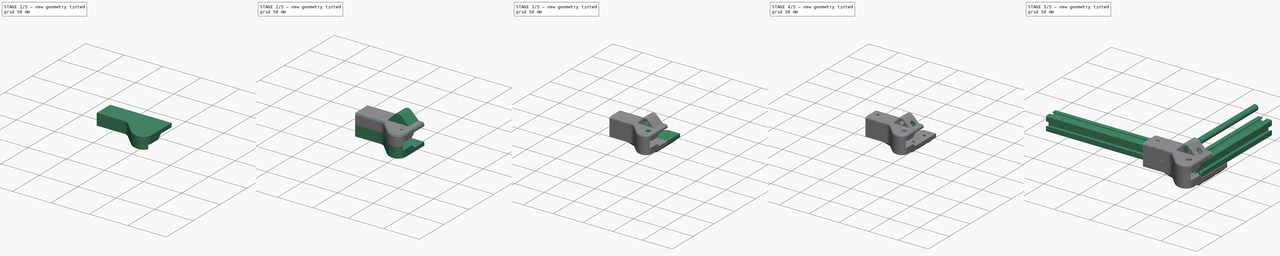
[diagram: build sequence overview — one tinted view per stage of 5, left to right]
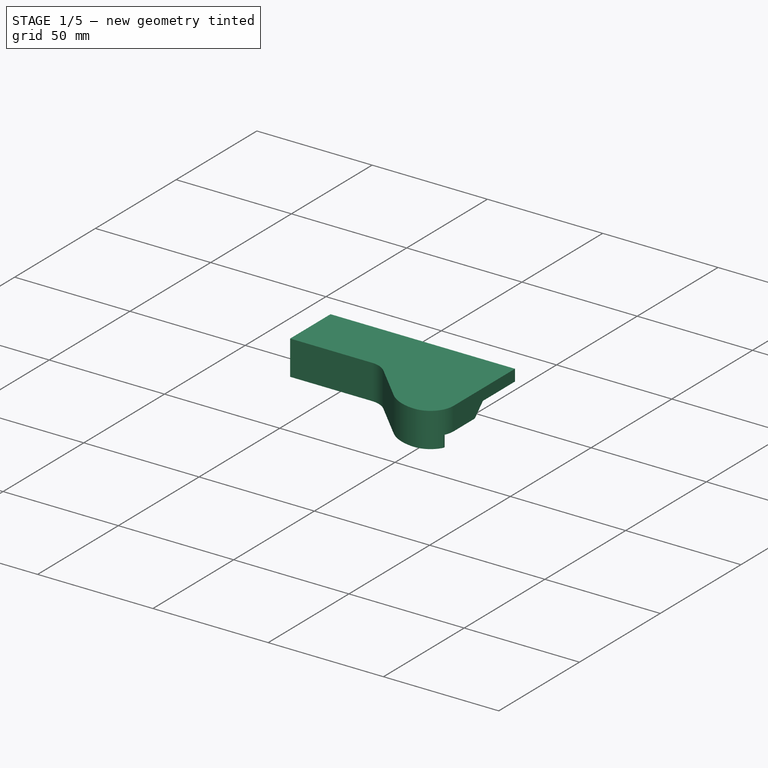
[diagram: stage 1 of 5 — iso view after this stage's code; geometry added in this stage tinted green]
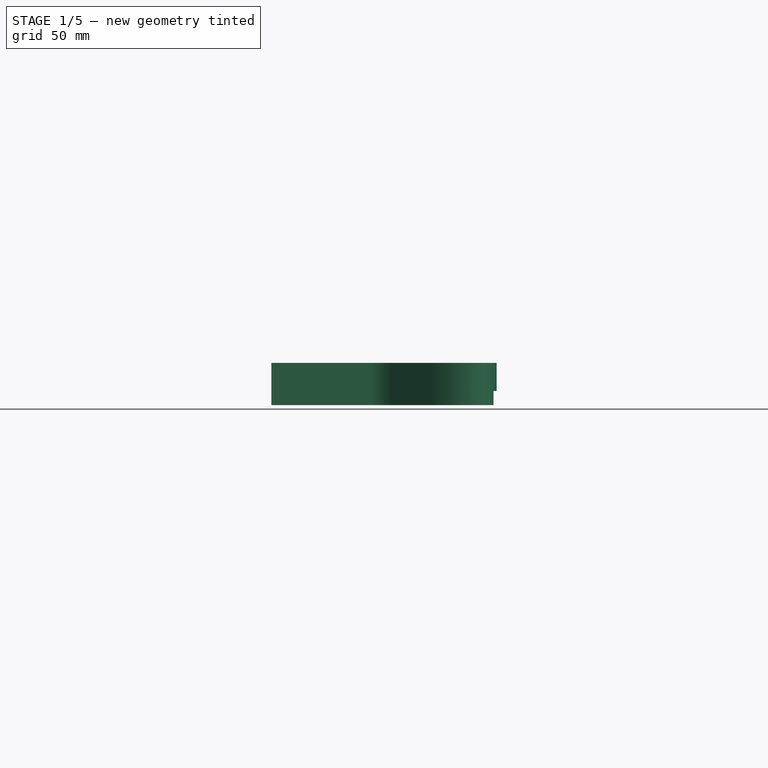
[diagram: stage 1 of 5 — front view after this stage's code; geometry added in this stage tinted green]
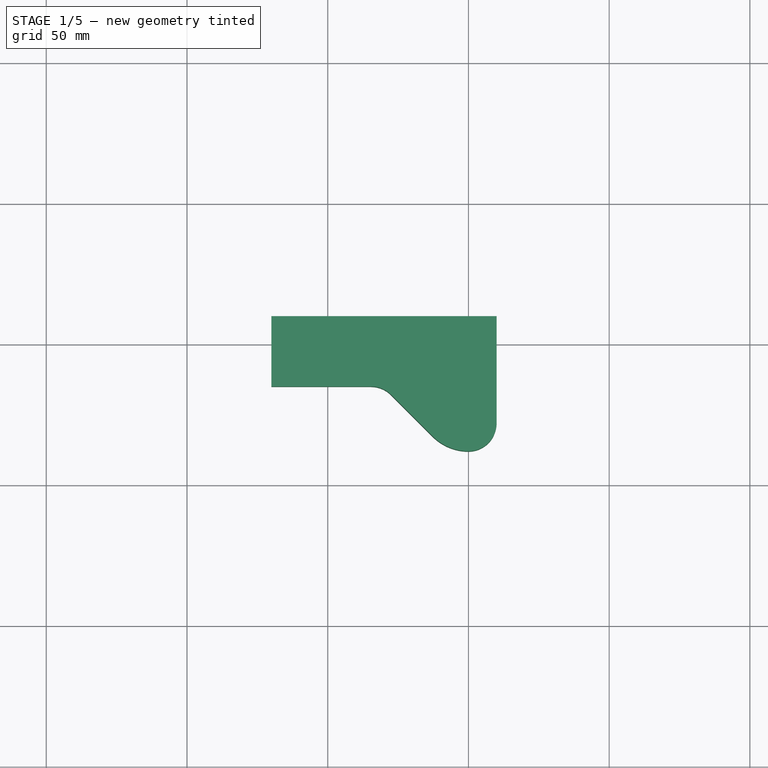
[diagram: stage 1 of 5 — top view after this stage's code; geometry added in this stage tinted green]
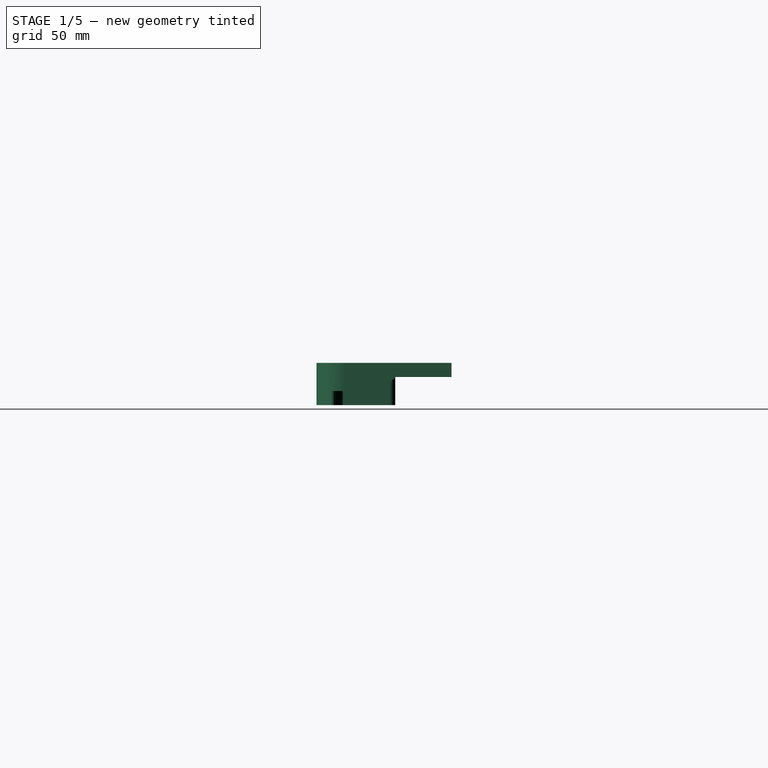
[diagram: stage 1 of 5 — right view after this stage's code; geometry added in this stage tinted green]
FCSTD DOCUMENT  (FreeCAD 0.16R4945 (Git))
Label: IdlerHold
License: All rights reserved
LicenseURL: http://en.wikipedia.org/wiki/All_rights_reserved
objects: Sketcher::SketchObject×18, PartDesign::Pocket×13, PartDesign::Pad×4, Part::Fillet×4, Part::Chamfer×4, Part::Mirroring×3, Part::Feature×2, PartDesign::LinearPattern×2, Part::Compound×1, Part::MultiFuse×1, App::DocumentObjectGroup×1
note: 69 computed .brp shape members not serialized (recipe doc carries the construction recipe); baked Part::Feature solids carry a one-line shape summary decoded from their .brp

FEATURE [Sketcher::SketchObject] Sketch001  label="Base"
  sketch-geometry (6):
    g0: LineSegment StartX=-70 StartY=10 StartZ=0 EndX=10 EndY=10 EndZ=0
    g1: LineSegment StartX=10 StartY=10 StartZ=0 EndX=10 EndY=-34.9666 EndZ=0
    g2: LineSegment StartX=-30.4558 StartY=-15 StartZ=0 EndX=-70 EndY=-15 EndZ=0
    g3: LineSegment StartX=-70 StartY=-15 StartZ=0 EndX=-70 EndY=10 EndZ=0
    g4: ArcOfCircle CenterX=0 CenterY=-20 CenterZ=0 NormalX=0 NormalY=0 NormalZ=1 Radius=18 StartAngle=3.92699 EndAngle=5.30142
    g5: LineSegment StartX=-30.4558 StartY=-15 StartZ=0 EndX=-12.728 EndY=-32.7279 EndZ=0
  constraints (19):
    c: Coincident(g0,g1)
    c: Coincident(g2,g3)
    c: Coincident(g3,g0)
    c: Horizontal(g0)
    c: Horizontal(g2)
    c: Vertical(g1)
    c: Vertical(g3)
    c: Coincident(g5,g2)
    c: Coincident(g4,g5)
    c: Tangent(g5,g4)
    c: Coincident(g4,g1)
    c: DistanceX(g1) = 10
    c: Angle(g5) = -0.785398
    c: DistanceY(g3) = 25
    c: DistanceY(g0) = 10
    c: PointOnObject(g4,g-2)
    c: DistanceY(g4) = -20
    c: DistanceX(g2) = -70
    c: Radius(g4) = 18
FEATURE [PartDesign::Pad] Pad  label="Base001"
  Length = 15
  Length2 = 100
  Sketch = -> Sketch001
  Type = 0
FEATURE [Part::Fillet] Fillet
  Base = -> Pad
  Edges = 2 edges r=10: [Edge1,Edge11]
FEATURE [Sketcher::SketchObject] Sketch002  label="InnerCavity"
  Placement = pos=(0,0,0) rot=(1,0,0;3.14159rad)
  Support = -> Fillet [Face2]
  sketch-geometry (6):
    g0: LineSegment StartX=-106.758 StartY=10 StartZ=0 EndX=-10 EndY=10 EndZ=0
    g1: LineSegment StartX=11.8067 StartY=24.1451 StartZ=0 EndX=11.8067 EndY=-14.3815 EndZ=0
    g2: LineSegment StartX=11.8067 StartY=-14.3815 StartZ=0 EndX=-106.758 EndY=-14.3815 EndZ=0
    g3: LineSegment StartX=-106.758 StartY=-14.3815 StartZ=0 EndX=-106.758 EndY=10 EndZ=0
    g4: LineSegment StartX=-10 StartY=10 StartZ=0 EndX=-10 EndY=28.6332 EndZ=0
    g5: ArcOfCircle CenterX=0 CenterY=22 CenterZ=0 NormalX=0 NormalY=0 NormalZ=1 Radius=12 StartAngle=0.17972 EndAngle=2.55591
  constraints (16):
    c: Coincident(g1,g2)
    c: Coincident(g2,g3)
    c: Coincident(g3,g0)
    c: Horizontal(g0)
    c: Horizontal(g2)
    c: Vertical(g1)
    c: Vertical(g3)
    c: Coincident(g4,g0)
    c: Coincident(g4,g5)
    c: Vertical(g4)
    c: PointOnObject(g5,g-2)
    c: DistanceY(g0) = 10
    c: DistanceX(g0) = -10
    c: Coincident(g1,g5)
    c: DistanceY(g5) = 22
    c: Radius(g5) = 12
FEATURE [PartDesign::Pocket] Pocket  label="InnerCavity001"
  Length = 5
  Sketch = -> Sketch002
  Type = 0
FEATURE [Sketcher::SketchObject] Sketch006  label="ProfileSlots"
  Placement = pos=(0,0,0) rot=(1,0,0;3.14159rad)
  Support = -> Pocket [Face2]
  sketch-geometry (4):
    g0: LineSegment StartX=-104.13 StartY=10 StartZ=0 EndX=16.5689 EndY=10 EndZ=0
    g1: LineSegment StartX=16.5689 StartY=10 StartZ=0 EndX=16.5689 EndY=-12.6117 EndZ=0
    g2: LineSegment StartX=16.5689 StartY=-12.6117 StartZ=0 EndX=-104.13 EndY=-12.6117 EndZ=0
    g3: LineSegment StartX=-104.13 StartY=-12.6117 StartZ=0 EndX=-104.13 EndY=10 EndZ=0
  constraints (9):
    c: Coincident(g0,g1)
    c: Coincident(g1,g2)
    c: Coincident(g2,g3)
    c: Coincident(g3,g0)
    c: Horizontal(g0)
    c: Horizontal(g2)
    c: Vertical(g1)
    c: Vertical(g3)
    c: DistanceY(g0) = 10
FEATURE [PartDesign::Pocket] Pocket001  label="ProfileSlots001"
  Length = 10
  Sketch = -> Sketch006
  Type = 0
FEATURE [Part::Chamfer] Chamfer  label="PrintableChamfer"
  Base = -> Pocket001
  Edges = 1 edges r=4.9: [Edge35]
FEATURE [Part::Fillet] Fillet003  label="AntiCreaseFillet"
  Base = -> Chamfer
  Edges = 3 edges: [Edge4 r=2,Edge6 r=2,Edge14 r=1]
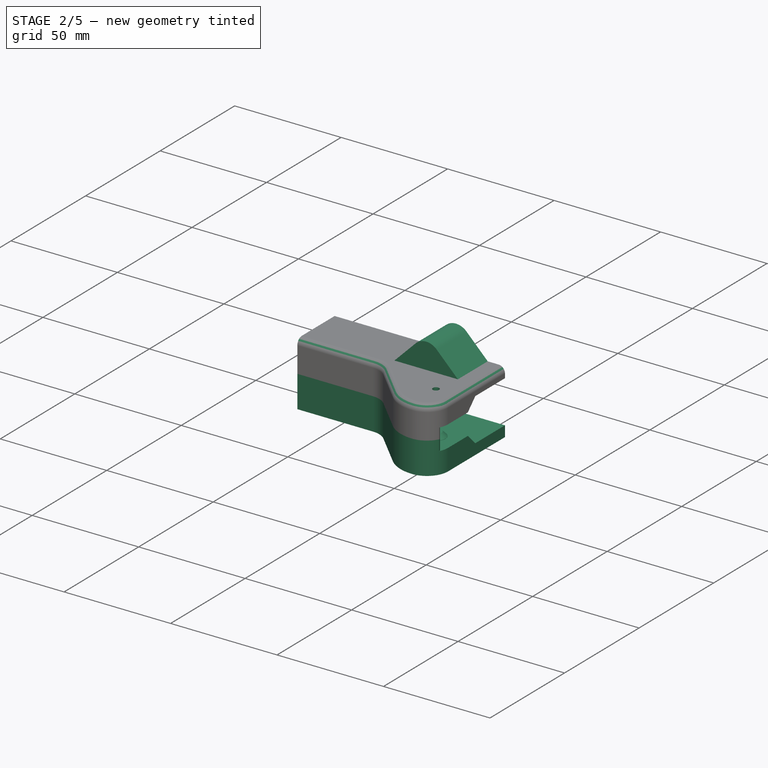
[diagram: stage 2 of 5 — iso view after this stage's code; geometry added in this stage tinted green]
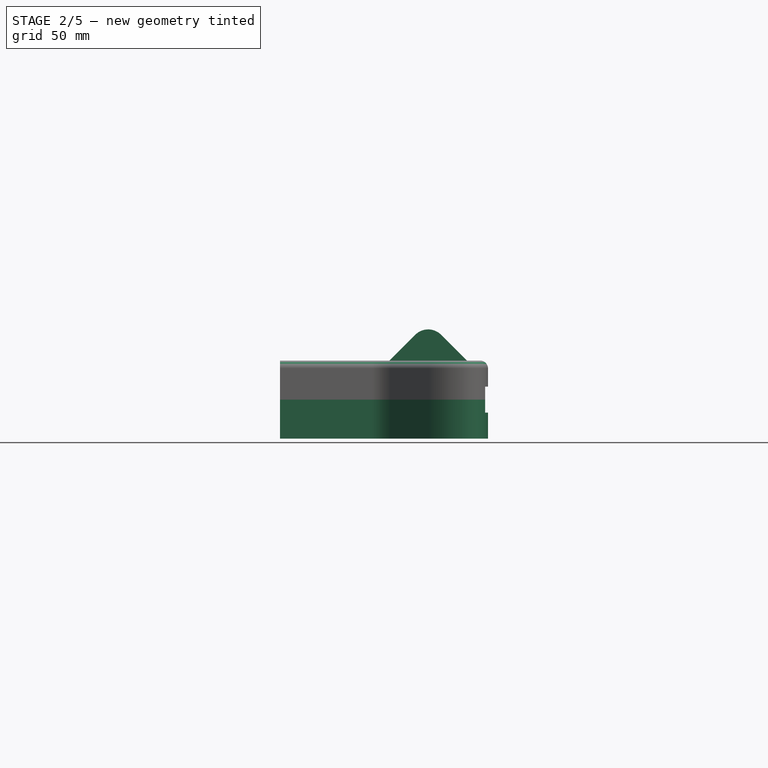
[diagram: stage 2 of 5 — front view after this stage's code; geometry added in this stage tinted green]
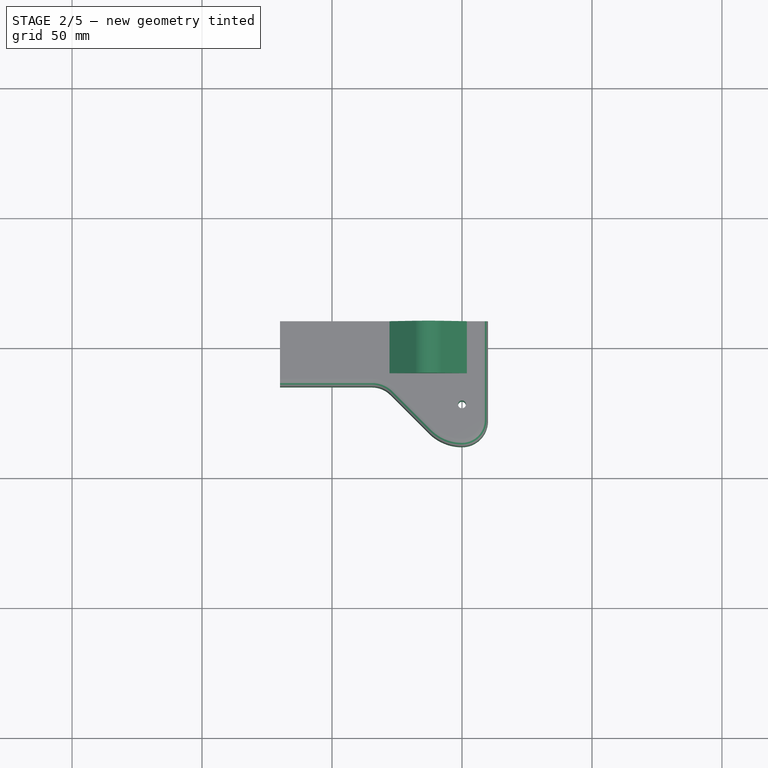
[diagram: stage 2 of 5 — top view after this stage's code; geometry added in this stage tinted green]
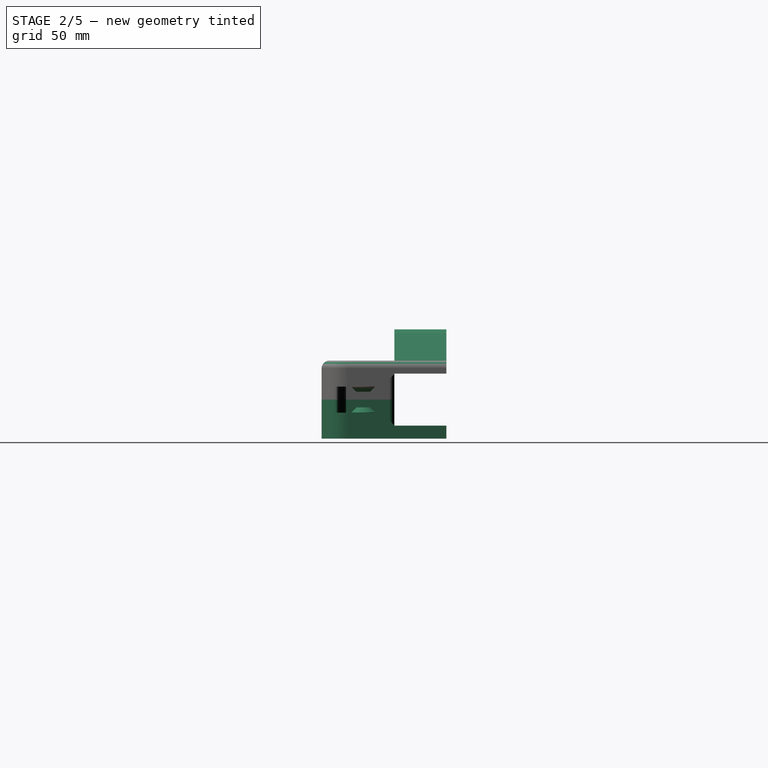
[diagram: stage 2 of 5 — right view after this stage's code; geometry added in this stage tinted green]
FEATURE [Sketcher::SketchObject] Sketch005  label="IdlerPad"
  Placement = pos=(0,0,5) rot=(1,0,0;3.14159rad)
  Support = -> Fillet003 [Face4]
  sketch-geometry (1):
    g0: Circle CenterX=0 CenterY=22 CenterZ=0 NormalX=0 NormalY=0 NormalZ=1 Radius=4.5
  constraints (3):
    c: PointOnObject(g0,g-2)
    c: Radius(g0) = 4.5
    c: DistanceY(g0) = 22
FEATURE [PartDesign::Pad] Pad001  label="IdlerPad001"
  Length = 2
  Length2 = 100
  Sketch = -> Sketch005
  Type = 0
FEATURE [Part::Chamfer] Chamfer001  label="PrintableChamfer001"
  Base = -> Pad001
  Edges = 1 edges r=1.9: [Edge1]
FEATURE [Sketcher::SketchObject] Sketch007  label="IdlerBolt"
  Placement = pos=(0,0,3) rot=(1,0,0;3.14159rad)
  Support = -> Chamfer001 [Face1]
  sketch-geometry (1):
    g0: Circle CenterX=0 CenterY=22 CenterZ=0 NormalX=0 NormalY=0 NormalZ=1 Radius=1.5
  constraints (3):
    c: PointOnObject(g0,g-2)
    c: DistanceY(g0) = 22
    c: Radius(g0) = 1.5
FEATURE [PartDesign::Pocket] Pocket002  label="IdlerBolt001"
  Length = 5
  Sketch = -> Sketch007
  Type = 1
FEATURE [Part::Mirroring] Part__Mirroring  label="IdlerBolt001 (Mirror #3)"
  Base = (0,0,0)
  Normal = (0,0,1)
  Source = -> Pocket002
FEATURE [Part::MultiFuse] Fusion  label="Mirroring"
  Shapes = -> [Part__Mirroring,Pocket002]
FEATURE [Part::Fillet] Fillet005  label="FrontFillet"
  Base = -> Fusion
  Edges = 6 edges r=3: [Edge59,Edge61,Edge73,Edge75,Edge78,Edge92]
FEATURE [Sketcher::SketchObject] Sketch003  label="RodHold"
  Placement = pos=(0,10,0) rot=(0,0.707107,0.707107;3.14159rad)
  Support = -> Fillet005 [Face13]
  sketch-geometry (6):
    g0: ArcOfCircle CenterX=13 CenterY=20 CenterZ=0 NormalX=0 NormalY=0 NormalZ=1 Radius=7 StartAngle=0.785398 EndAngle=2.35619
    g1: LineSegment StartX=17.9497 StartY=24.9497 StartZ=0 EndX=29.2823 EndY=13.6172 EndZ=0
    g2: LineSegment StartX=8.05025 StartY=24.9497 StartZ=0 EndX=-3.28226 EndY=13.6172 EndZ=0
    g3: LineSegment StartX=-3.28226 StartY=13.6172 StartZ=0 EndX=-3.28226 EndY=10.9876 EndZ=0
    g4: LineSegment StartX=-3.28226 StartY=10.9876 StartZ=0 EndX=29.2823 EndY=10.9876 EndZ=0
    g5: LineSegment StartX=29.2823 StartY=10.9876 StartZ=0 EndX=29.2823 EndY=13.6172 EndZ=0
  constraints (17):
    c: DistanceY(g0) = 20
    c: DistanceX(g0) = 13
    c: Radius(g0) = 7
    c: Coincident(g1,g0)
    c: Coincident(g2,g0)
    c: Tangent(g0,g2)
    c: Tangent(g0,g1)
    c: Coincident(g3,g4)
    c: Coincident(g4,g5)
    c: Vertical(g5)
    c: Vertical(g3)
    c: Horizontal(g4)
    c: Coincident(g3,g2)
    c: Coincident(g5,g1)
    c: Perpendicular(g1,g2)
    c: Angle(g1) = -0.785398
    c: Equal(g3,g5)
FEATURE [PartDesign::Pad] Pad002  label="RodHold001"
  Length = 20
  Length2 = 100
  Reversed = true
  Sketch = -> Sketch003
  Type = 0
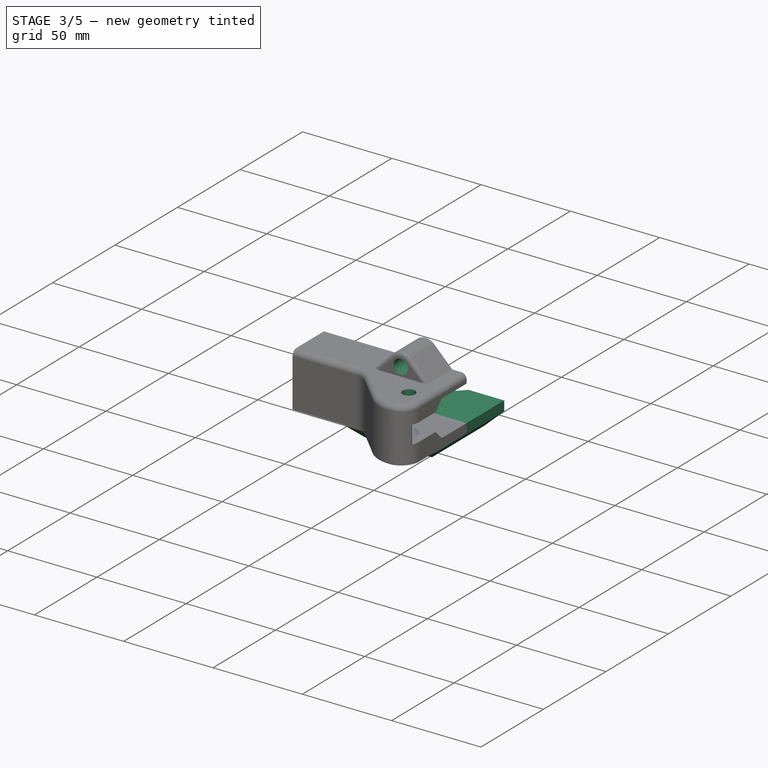
[diagram: stage 3 of 5 — iso view after this stage's code; geometry added in this stage tinted green]
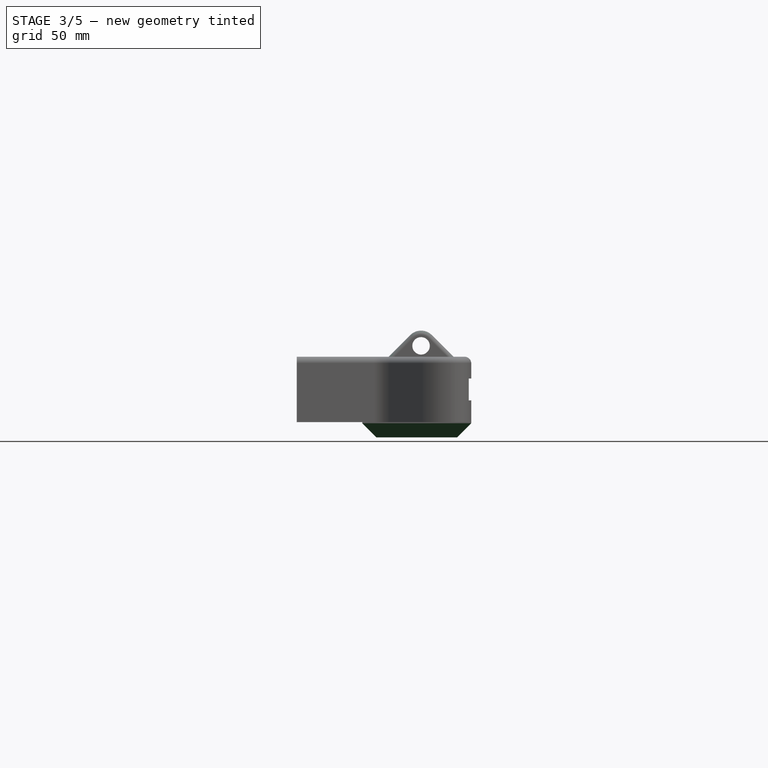
[diagram: stage 3 of 5 — front view after this stage's code; geometry added in this stage tinted green]
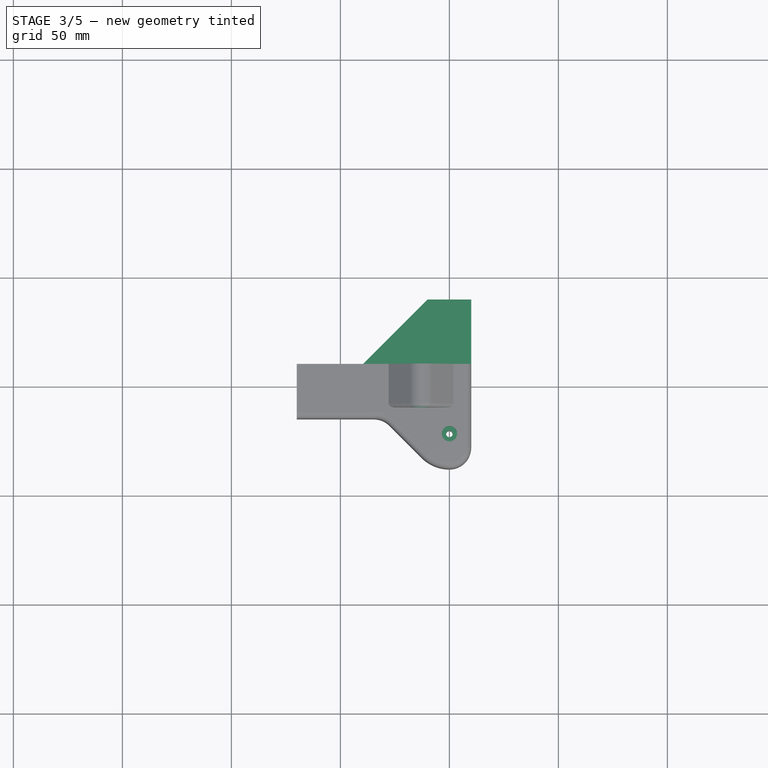
[diagram: stage 3 of 5 — top view after this stage's code; geometry added in this stage tinted green]
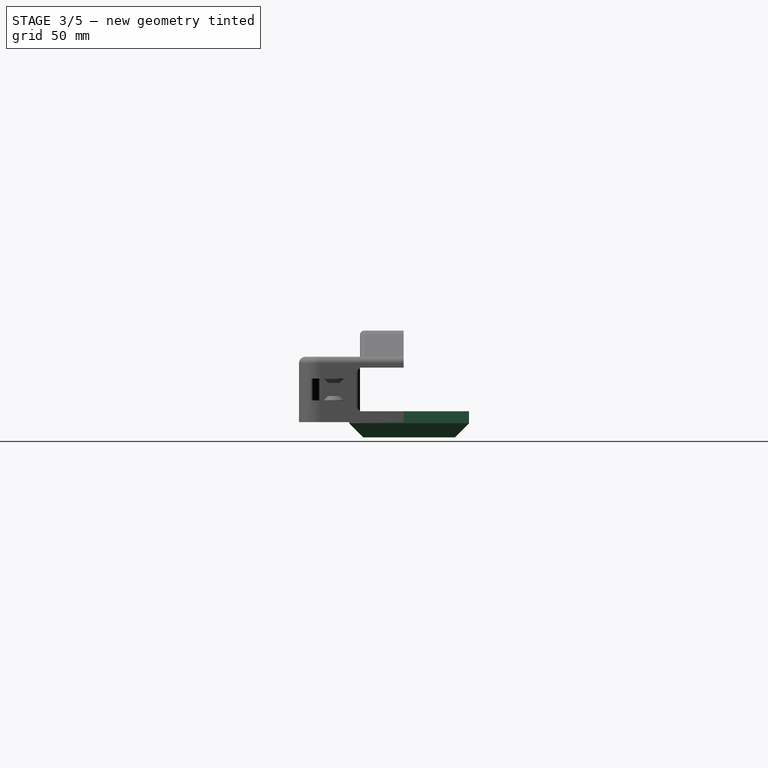
[diagram: stage 3 of 5 — right view after this stage's code; geometry added in this stage tinted green]
FEATURE [Part::Fillet] Fillet004
  Base = -> Pad002
  Edges = 3 edges r=2: [Edge4,Edge7,Edge10]
FEATURE [Sketcher::SketchObject] Sketch004  label="SmRod"
  Placement = pos=(0,10,0) rot=(0,0.707107,0.707107;3.14159rad)
  Support = -> Fillet004 [Face4]
  sketch-geometry (1):
    g0: Circle CenterX=13 CenterY=20 CenterZ=0 NormalX=0 NormalY=0 NormalZ=1 Radius=4
  constraints (3):
    c: DistanceX(g0) = 13
    c: DistanceY(g0) = 20
    c: Radius(g0) = 4
FEATURE [PartDesign::Pocket] Pocket003  label="SmRod001"
  Length = 5
  Sketch = -> Sketch004
  Type = 1
FEATURE [Sketcher::SketchObject] Sketch008  label="IdlerBoltHead"
  Placement = pos=(0,0,15) rot=(0,0,1;0rad)
  Support = -> Pocket003 [Face6]
  sketch-geometry (1):
    g0: Circle CenterX=0 CenterY=-22 CenterZ=0 NormalX=0 NormalY=0 NormalZ=1 Radius=3.5
  constraints (3):
    c: PointOnObject(g0,g-2)
    c: DistanceY(g0) = -22
    c: Radius(g0) = 3.5
FEATURE [PartDesign::Pocket] Pocket004  label="IdlerBoltHead001"
  Length = 5
  Sketch = -> Sketch008
  Type = 0
FEATURE [Sketcher::SketchObject] Sketch009  label="Foot"
  Placement = pos=(0,0,-10) rot=(0,0,1;0rad)
  Support = -> Pocket004 [Face39]
  sketch-geometry (5):
    g0: LineSegment StartX=-10 StartY=40 StartZ=0 EndX=10 EndY=40 EndZ=0
    g1: LineSegment StartX=10 StartY=40 StartZ=0 EndX=10 EndY=-15 EndZ=0
    g2: LineSegment StartX=10 StartY=-15 StartZ=0 EndX=-40 EndY=-15 EndZ=0
    g3: LineSegment StartX=-40 StartY=-15 StartZ=0 EndX=-40 EndY=10 EndZ=0
    g4: LineSegment StartX=-40 StartY=10 StartZ=0 EndX=-10 EndY=40 EndZ=0
  constraints (15):
    c: Coincident(g0,g1)
    c: Coincident(g1,g2)
    c: Coincident(g2,g3)
    c: Coincident(g3,g4)
    c: Coincident(g0,g4)
    c: Horizontal(g0)
    c: Vertical(g1)
    c: Vertical(g3)
    c: Horizontal(g2)
    c: DistanceX(g1) = 10
    c: Angle(g4) = 0.785398
    c: DistanceX(g0) = 20
    c: DistanceY(g1) = -15
    c: DistanceY(g3) = 25
    c: DistanceY(g0) = 40
FEATURE [PartDesign::Pad] Pad003  label="Foot001"
  Length = 12
  Length2 = 100
  Reversed = true
  Sketch = -> Sketch009
  Type = 0
FEATURE [Part::Chamfer] Chamfer002
  Base = -> Pad003
  Edges = 5 edges r=6.49: [Edge145,Edge160,Edge171,Edge173,Edge174]
FEATURE [Sketcher::SketchObject] Sketch010  label="IdlerNut"
  Placement = pos=(0,0,-15) rot=(1,0,0;3.14159rad)
  Support = -> Chamfer002 [Face4]
  sketch-geometry (7):
    g0: LineSegment StartX=1.55 StartY=19.3153 StartZ=0 EndX=3.1 EndY=22 EndZ=0
    g1: LineSegment StartX=3.1 StartY=22 StartZ=0 EndX=1.55 EndY=24.6847 EndZ=0
    g2: LineSegment StartX=1.55 StartY=24.6847 StartZ=0 EndX=-1.55 EndY=24.6847 EndZ=0
    g3: LineSegment StartX=-1.55 StartY=24.6847 StartZ=0 EndX=-3.1 EndY=22 EndZ=0
    g4: LineSegment StartX=-3.1 StartY=22 StartZ=0 EndX=-1.55 EndY=19.3153 EndZ=0
    g5: LineSegment StartX=-1.55 StartY=19.3153 StartZ=0 EndX=1.55 EndY=19.3153 EndZ=0
    g6: Circle [constr] CenterX=0 CenterY=22 CenterZ=0 NormalX=0 NormalY=0 NormalZ=1 Radius=3.1
  constraints (17):
    c: Coincident(g0,g1)
    c: Coincident(g1,g2)
    c: Coincident(g2,g3)
    c: Coincident(g3,g4)
    c: Coincident(g4,g5)
    c: Coincident(g5,g0)
    c: Equal(g0, g1-g5) x5
    c: PointOnObject(g0,g6)
    c: PointOnObject(g1,g6)
    c: PointOnObject(g2,g6)
    c: PointOnObject(g3,g6)
    c: PointOnObject(g4,g6)
    c: PointOnObject(g5,g6)
    c: PointOnObject(g6,g-2)
    c: DistanceY(g6) = 22
    c: Radius(g6) = 3.1
    c: Horizontal(g2)
FEATURE [PartDesign::Pocket] Pocket005  label="IdlerNut001"
  Length = 4
  Sketch = -> Sketch010
  Type = 0
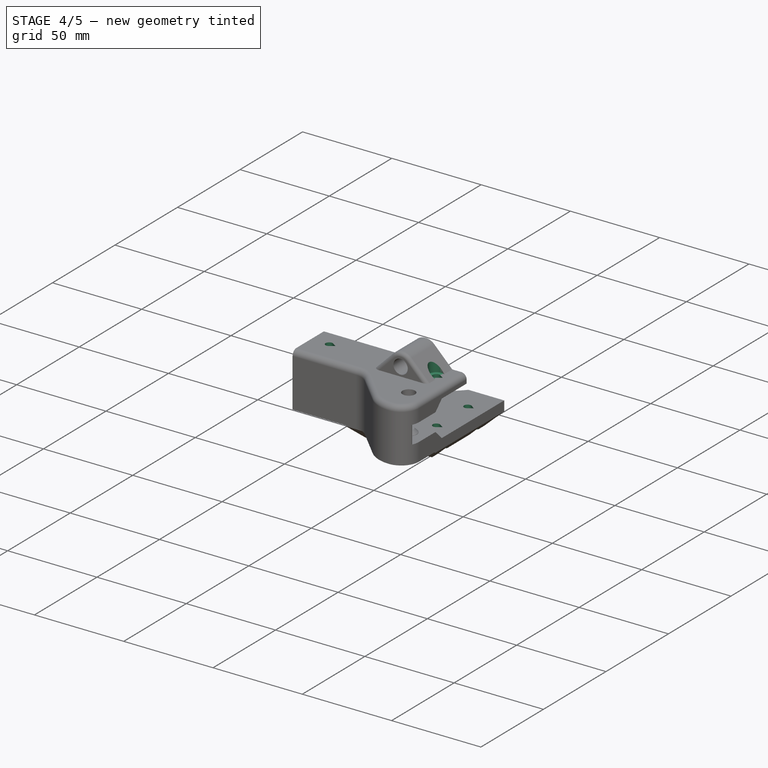
[diagram: stage 4 of 5 — iso view after this stage's code; geometry added in this stage tinted green]
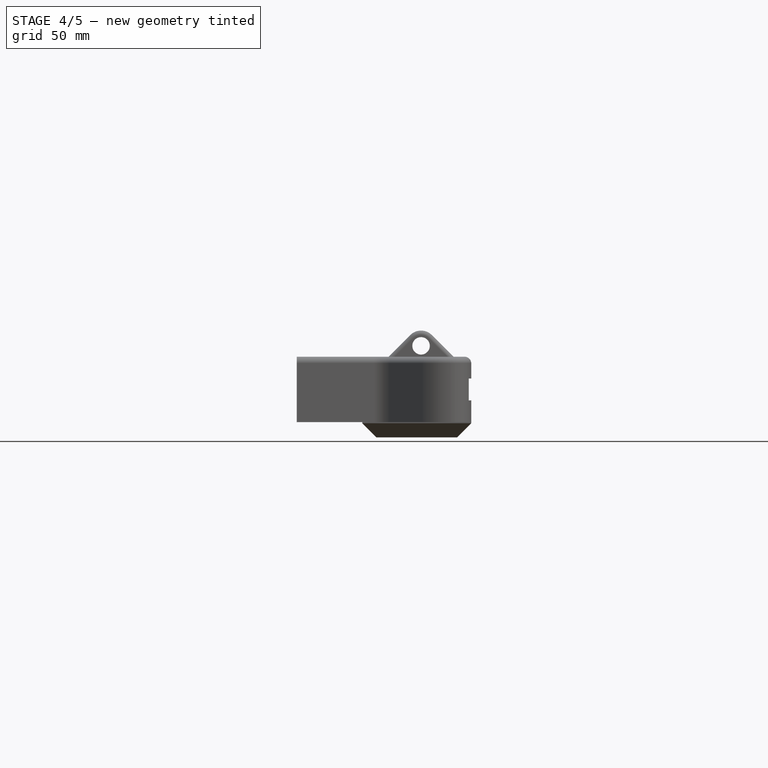
[diagram: stage 4 of 5 — front view after this stage's code; geometry added in this stage tinted green]
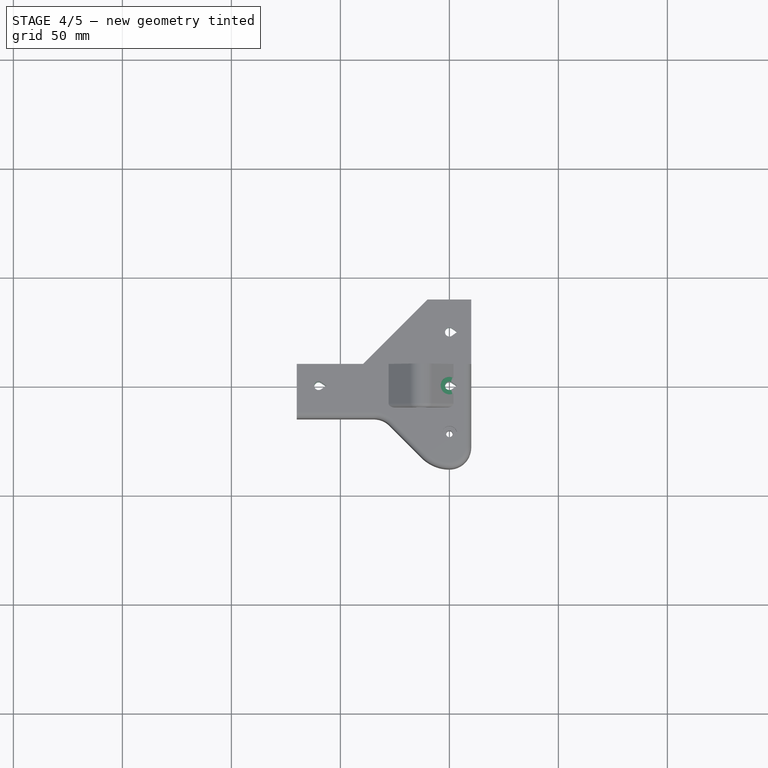
[diagram: stage 4 of 5 — top view after this stage's code; geometry added in this stage tinted green]
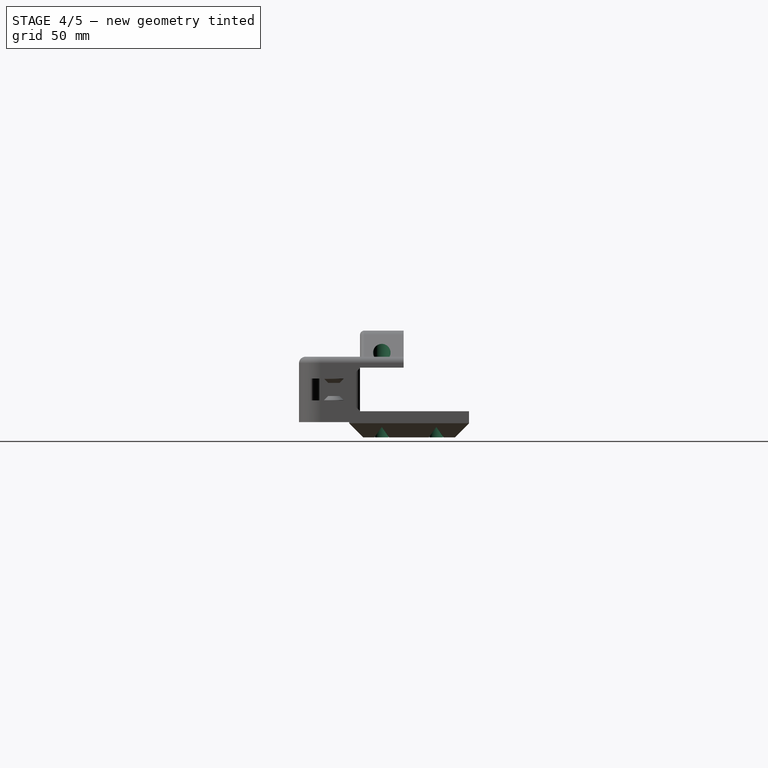
[diagram: stage 4 of 5 — right view after this stage's code; geometry added in this stage tinted green]
FEATURE [Sketcher::SketchObject] Sketch011  label="HorizProfBolt"
  Placement = pos=(0,0,15) rot=(0,0,1;0rad)
  Support = -> Pocket005 [Face39]
  sketch-geometry (4):
    g0: ArcOfCircle CenterX=-60 CenterY=0 CenterZ=0 NormalX=0 NormalY=0 NormalZ=1 Radius=2 StartAngle=0.959939 EndAngle=5.32326
    g1: LineSegment StartX=-58.8529 StartY=1.63831 StartZ=0 EndX=-56.5131 EndY=0 EndZ=0
    g2: LineSegment StartX=-56.5131 StartY=0 StartZ=0 EndX=-58.8528 EndY=-1.6383 EndZ=0
    g3: LineSegment [constr] StartX=-56.5131 StartY=0 StartZ=0 EndX=-60 EndY=0 EndZ=0
  constraints (12):
    c: Coincident(g1,g2)
    c: Coincident(g2,g0)
    c: Coincident(g1,g0)
    c: Tangent(g2,g0)
    c: Tangent(g0,g1)
    c: Angle(g1,g2) = 1.22173
    c: PointOnObject(g0,g-1)
    c: Radius(g0) = 2
    c: DistanceX(g0) = -60
    c: Coincident(g3,g0)
    c: Coincident(g3,g1)
    c: Angle(g3) = -3.14159
FEATURE [PartDesign::Pocket] Pocket006  label="HorizProfBolt001"
  Length = 5
  Sketch = -> Sketch011
  Type = 1
FEATURE [Sketcher::SketchObject] Sketch012  label="FootBolt"
  Placement = pos=(0,0,-22) rot=(1,0,0;3.14159rad)
  Support = -> Pocket006 [Face11]
  sketch-geometry (4):
    g0: ArcOfCircle CenterX=0 CenterY=0 CenterZ=0 NormalX=0 NormalY=0 NormalZ=1 Radius=2 StartAngle=0.959923 EndAngle=5.32325
    g1: LineSegment StartX=1.14717 StartY=1.6383 StartZ=0 EndX=3.48689 EndY=0 EndZ=0
    g2: LineSegment StartX=3.48689 StartY=0 StartZ=0 EndX=1.14714 EndY=-1.63831 EndZ=0
    g3: LineSegment [constr] StartX=0 StartY=0 StartZ=0 EndX=3.48689 EndY=0 EndZ=0
  constraints (11):
    c: Coincident(g1,g2)
    c: Coincident(g0,g2)
    c: Coincident(g0,g1)
    c: Tangent(g1,g0)
    c: Tangent(g2,g0)
    c: Radius(g0) = 2
    c: Angle(g1,g2) = 1.22173
    c: Coincident(g3,g0)
    c: Coincident(g3,g1)
    c: Horizontal(g3)
    c: Coincident(g0,g-1)
FEATURE [PartDesign::Pocket] Pocket007  label="FootBolt001"
  Length = 16
  Sketch = -> Sketch012
  Type = 1
FEATURE [PartDesign::LinearPattern] LinearPattern  label="FootBolts"
  Direction = -> Sketch012 [V_Axis]
  Length = 25
  Occurrences = 2
  Originals = -> [Pocket007]
  Reversed = true
FEATURE [Sketcher::SketchObject] Sketch013  label="FootBoltHead"
  Placement = pos=(0,0,-22) rot=(1,0,0;3.14159rad)
  Support = -> LinearPattern [Face11]
  sketch-geometry (4):
    g0: ArcOfCircle CenterX=0 CenterY=0 CenterZ=0 NormalX=0 NormalY=0 NormalZ=1 Radius=4 StartAngle=0.959927 EndAngle=5.32325
    g1: LineSegment StartX=2.29432 StartY=3.2766 StartZ=0 EndX=6.97379 EndY=0 EndZ=0
    g2: LineSegment StartX=6.97379 StartY=0 StartZ=0 EndX=2.29429 EndY=-3.27662 EndZ=0
    g3: LineSegment [constr] StartX=0 StartY=0 StartZ=0 EndX=6.97379 EndY=0 EndZ=0
  constraints (11):
    c: Coincident(g1,g2)
    c: Coincident(g0,g2)
    c: Coincident(g0,g1)
    c: Tangent(g1,g0)
    c: Tangent(g2,g0)
    c: Radius(g0) = 4
    c: Angle(g1,g2) = 1.22173
    c: Coincident(g3,g0)
    c: Coincident(g3,g1)
    c: Horizontal(g3)
    c: Coincident(g0,g-1)
FEATURE [PartDesign::Pocket] Pocket008  label="FootBoltHead001"
  Length = 6
  Sketch = -> Sketch013
  Type = 0
FEATURE [PartDesign::LinearPattern] LinearPattern001  label="FootBoltsHeads"
  Direction = -> Sketch013 [V_Axis]
  Length = 25
  Occurrences = 2
  Originals = -> [Pocket008]
  Reversed = true
FEATURE [Part::Chamfer] Chamfer003  label="AntiCreaseChamfer"
  Base = -> LinearPattern001
  Edges = 4 edges r=1: [Edge90,Edge91,Edge92,Edge93]
FEATURE [Sketcher::SketchObject] Sketch015  label="UpperBoltHead"
  Placement = pos=(0,0,15) rot=(0,0,1;0rad)
  Support = -> Chamfer003 [Face75]
  sketch-geometry (1):
    g0: Circle CenterX=0 CenterY=0 CenterZ=0 NormalX=0 NormalY=0 NormalZ=1 Radius=4
  constraints (2):
    c: Coincident(g0,g-1)
    c: Radius(g0) = 4
FEATURE [PartDesign::Pocket] Pocket010  label="UpperBoltHead001"
  Length = 5
  Reversed = true
  Sketch = -> Sketch015
  Type = 1
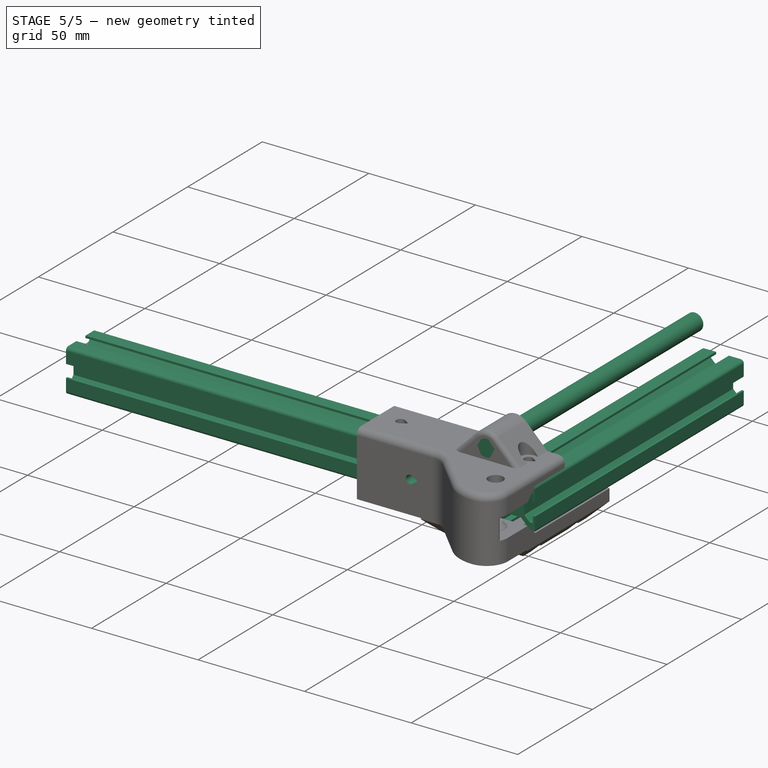
[diagram: stage 5 of 5 — iso view after this stage's code; geometry added in this stage tinted green]
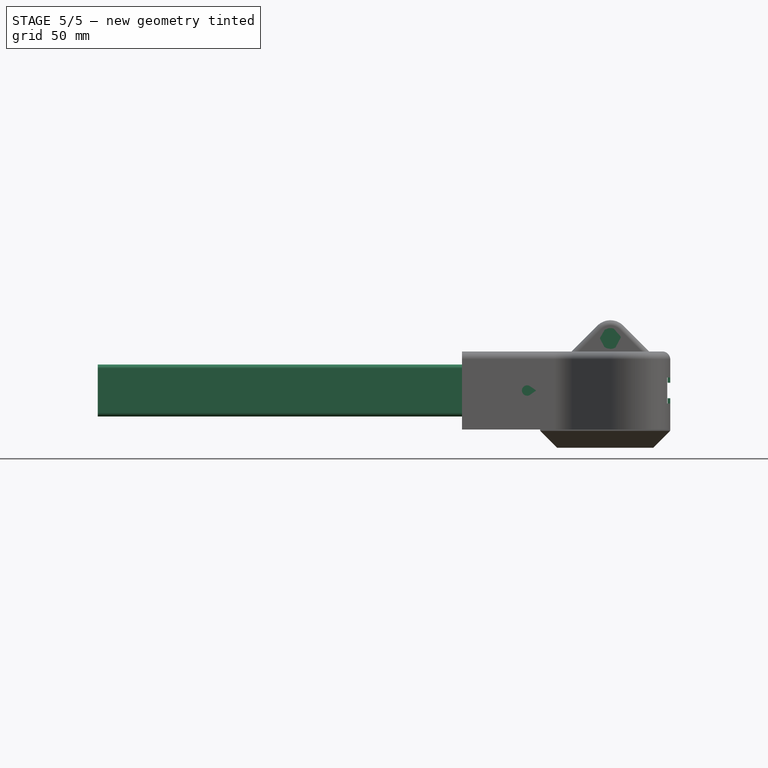
[diagram: stage 5 of 5 — front view after this stage's code; geometry added in this stage tinted green]
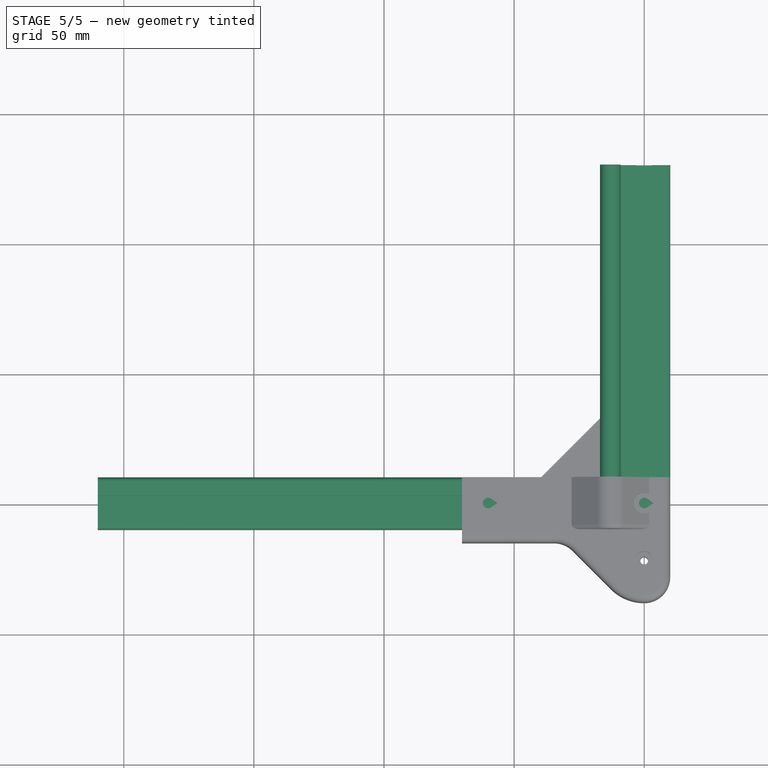
[diagram: stage 5 of 5 — top view after this stage's code; geometry added in this stage tinted green]
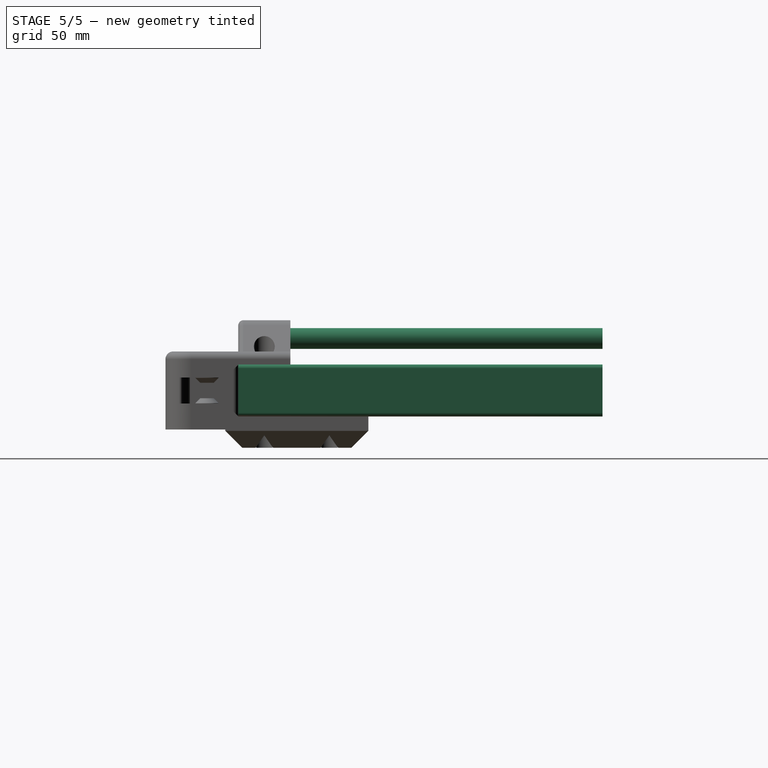
[diagram: stage 5 of 5 — right view after this stage's code; geometry added in this stage tinted green]
FEATURE [Part::Mirroring] Part__Mirroring004  label="YBar (Mirror #5)"
  Base = (0,0,0)
  Normal = (1,0,0)
FEATURE [Part::Feature] Fillet002  label="T slot extrusion 20x20x200.001"
  Placement = pos=(-100,-70,0) rot=(0,-1,0;1.5708rad)
  shape: bbox 200 x 20 x 20 mm, 51 faces (baked)
FEATURE [Part::Mirroring] Part__Mirroring001  label="T slot extrusion 20x20x140.001 (Mirror #2)"
  Base = (0,0,0)
  Normal = (1,0,0)
FEATURE [Sketcher::SketchObject] Sketch  label="StringPath"
  Placement = pos=(0,0,10) rot=(0,0,1;0rad)
  sketch-geometry (17):
    g0: ArcOfCircle CenterX=-110 CenterY=90 CenterZ=0 NormalX=0 NormalY=0 NormalZ=1 Radius=8 StartAngle=6.28318 EndAngle=9.42478
    g1: ArcOfCircle CenterX=110 CenterY=90 CenterZ=0 NormalX=0 NormalY=0 NormalZ=1 Radius=8 StartAngle=6.28319 EndAngle=9.42478
    g2: ArcOfCircle CenterX=110 CenterY=-82 CenterZ=0 NormalX=0 NormalY=0 NormalZ=1 Radius=8 StartAngle=3.14159 EndAngle=6.28319
    g3: ArcOfCircle CenterX=97 CenterY=-17 CenterZ=0 NormalX=0 NormalY=0 NormalZ=1 Radius=5 StartAngle=2.30718e-06 EndAngle=1.5708
    g4: ArcOfCircle CenterX=97 CenterY=17 CenterZ=0 NormalX=0 NormalY=0 NormalZ=1 Radius=5 StartAngle=4.71239 EndAngle=6.28319
    g5: ArcOfCircle CenterX=-97 CenterY=17 CenterZ=0 NormalX=0 NormalY=0 NormalZ=1 Radius=5 StartAngle=3.14159 EndAngle=4.71239
    g6: ArcOfCircle CenterX=-97 CenterY=-17 CenterZ=0 NormalX=0 NormalY=0 NormalZ=1 Radius=5 StartAngle=1.5708 EndAngle=3.14159
    g7: ArcOfCircle CenterX=-110 CenterY=-82 CenterZ=0 NormalX=0 NormalY=0 NormalZ=1 Radius=8 StartAngle=3.14159 EndAngle=6.28319
    g8: LineSegment StartX=-118 StartY=90 StartZ=0 EndX=-118 EndY=-82 EndZ=0
    g9: LineSegment StartX=-102 StartY=-17 StartZ=0 EndX=-102 EndY=-82 EndZ=0
    g10: LineSegment StartX=-97 StartY=-12 StartZ=0 EndX=97 EndY=-12 EndZ=0
    g11: LineSegment StartX=-102 StartY=90 StartZ=0 EndX=-102 EndY=17 EndZ=0
    g12: LineSegment StartX=102 StartY=90 StartZ=0 EndX=102 EndY=17 EndZ=0
    g13: LineSegment StartX=118 StartY=90 StartZ=0 EndX=118 EndY=-82 EndZ=0
    g14: LineSegment StartX=102 StartY=-82 StartZ=0 EndX=102 EndY=-17 EndZ=0
    g15: LineSegment StartX=-97 StartY=12 StartZ=0 EndX=-20.947 EndY=12 EndZ=0
    g16: LineSegment StartX=14.5397 StartY=12 StartZ=0 EndX=97 EndY=12 EndZ=0
  constraints (49):
    c: Equal(g0,g1)
    c: Symmetric(g0,g1,g-2)
    c: Symmetric(g2,g7,g-2)
    c: Equal(g7,g2)
    c: Symmetric(g6,g3,g-2)
    c: Symmetric(g5,g4,g-2)
    c: DistanceX(g2) = 110
    c: DistanceX(g1) = 110
    c: DistanceY(g1) = 90
    c: DistanceY(g2) = -82
    c: Coincident(g13,g1)
    c: Coincident(g13,g2)
    c: Coincident(g14,g2)
    c: Coincident(g14,g3)
    c: Coincident(g3,g10)
    c: Coincident(g4,g12)
    c: Coincident(g6,g10)
    c: Coincident(g6,g9)
    c: Coincident(g7,g9)
    c: Coincident(g7,g8)
    c: Coincident(g8,g0)
    c: Coincident(g11,g0)
    c: Coincident(g12,g1)
    c: Coincident(g5,g11)
    c: Coincident(g16,g4)
    c: Coincident(g15,g5)
    c: Vertical(g8)
    c: Vertical(g13)
    c: Vertical(g12)
    c: Vertical(g11)
    c: Vertical(g9)
    c: Vertical(g14)
    c: Horizontal(g10)
    c: Horizontal(g15)
    c: Horizontal(g16)
    c: PointOnObject(g15,g16)
    c: Tangent(g5,g15)
    c: Tangent(g11,g0)
    c: Tangent(g9,g7)
    c: Tangent(g9,g6)
    c: Tangent(g10,g3)
    c: Tangent(g16,g4)
    c: Radius(g0) = 8
    c: Symmetric(g5,g6,g-1)
    c: Equal(g6,g5)
    c: Tangent(g1,g13)
    c: Tangent(g8,g0)
    c: Radius(g4) = 5
    c: DistanceY(g3,g4) = 24
FEATURE [Part::Compound] Compound  label="Reference"
  Links = -> [Sketch,Part__Mirroring001,Fillet002,Part__Mirroring004]
  Placement = pos=(-110,60,-10) rot=(0,0,1;0rad)
FEATURE [Sketcher::SketchObject] Sketch016  label="FrontBolt"
  Placement = pos=(0,-15,0) rot=(1,0,0;1.5708rad)
  Support = -> Pocket010 [Face44]
  sketch-geometry (4):
    g0: ArcOfCircle CenterX=-45 CenterY=0 CenterZ=0 NormalX=0 NormalY=0 NormalZ=1 Radius=2 StartAngle=0.959925 EndAngle=5.32326
    g1: LineSegment StartX=-43.8528 StartY=1.6383 StartZ=0 EndX=-41.5131 EndY=0 EndZ=0
    g2: LineSegment StartX=-41.5131 StartY=0 StartZ=0 EndX=-43.8528 EndY=-1.6383 EndZ=0
    g3: LineSegment [constr] StartX=-45 StartY=0 StartZ=0 EndX=-41.5131 EndY=0 EndZ=0
  constraints (12):
    c: Coincident(g1,g2)
    c: Coincident(g2,g0)
    c: Coincident(g1,g0)
    c: Tangent(g2,g0)
    c: Tangent(g1,g0)
    c: Coincident(g3,g0)
    c: Coincident(g3,g1)
    c: Angle(g1,g2) = 1.22173
    c: Radius(g0) = 2
    c: Angle(g3) = 0
    c: PointOnObject(g0,g-1)
    c: DistanceX(g0) = -45
FEATURE [PartDesign::Pocket] Pocket011  label="FrontBolt001"
  Length = 5
  Sketch = -> Sketch016
  Type = 1
FEATURE [Sketcher::SketchObject] Sketch017  label="3rdFootBolt"
  Placement = pos=(0,0,-22) rot=(1,0,0;3.14159rad)
  Support = -> Pocket011 [Face1]
  sketch-geometry (4):
    g0: ArcOfCircle CenterX=-25 CenterY=0 CenterZ=0 NormalX=0 NormalY=0 NormalZ=1 Radius=2 StartAngle=0.959941 EndAngle=5.32324
    g1: LineSegment StartX=-23.8529 StartY=1.63832 StartZ=0 EndX=-21.5131 EndY=0 EndZ=0
    g2: LineSegment StartX=-21.5131 StartY=0 StartZ=0 EndX=-23.8529 EndY=-1.63832 EndZ=0
    g3: LineSegment [constr] StartX=-25 StartY=0 StartZ=0 EndX=-21.5131 EndY=0 EndZ=0
  constraints (12):
    c: Coincident(g1,g2)
    c: Coincident(g2,g0)
    c: Coincident(g1,g0)
    c: Tangent(g1,g0)
    c: Tangent(g2,g0)
    c: Coincident(g3,g0)
    c: Coincident(g3,g1)
    c: Angle(g3) = 0
    c: PointOnObject(g0,g-1)
    c: Radius(g0) = 2
    c: Angle(g1,g2) = 1.22173
    c: DistanceX(g0) = -25
FEATURE [PartDesign::Pocket] Pocket012  label="3rdFootBolt001"
  Length = 5
  Sketch = -> Sketch017
  Type = 2
FEATURE [Sketcher::SketchObject] Sketch018  label="3rdFootBoltHead"
  Placement = pos=(0,0,-22) rot=(1,0,0;3.14159rad)
  Support = -> Pocket012 [Face1]
  sketch-geometry (4):
    g0: ArcOfCircle CenterX=-25 CenterY=0 CenterZ=0 NormalX=0 NormalY=0 NormalZ=1 Radius=4 StartAngle=0.959937 EndAngle=5.32325
    g1: LineSegment StartX=-22.7057 StartY=3.27662 StartZ=0 EndX=-18.0262 EndY=0 EndZ=0
    g2: LineSegment StartX=-18.0262 StartY=0 StartZ=0 EndX=-22.7057 EndY=-3.27662 EndZ=0
    g3: LineSegment [constr] StartX=-25 StartY=0 StartZ=0 EndX=-18.0262 EndY=0 EndZ=0
  constraints (12):
    c: Coincident(g1,g2)
    c: Coincident(g2,g0)
    c: Coincident(g1,g0)
    c: Tangent(g1,g0)
    c: Tangent(g2,g0)
    c: Coincident(g3,g0)
    c: Coincident(g3,g1)
    c: Angle(g3) = 0
    c: PointOnObject(g0,g-1)
    c: Radius(g0) = 4
    c: Angle(g1,g2) = 1.22173
    c: DistanceX(g0) = -25
FEATURE [PartDesign::Pocket] Pocket013  label="3rdFootBoltHead001"
  Length = 6
  Sketch = -> Sketch018
  Type = 0
FEATURE [Part::Feature] Pocket013001  label="IdlerHold"
  shape: bbox 80.83 x 79.49 x 49.8 mm, 107 faces (baked)
FEATURE [App::DocumentObjectGroup] Group  label="src"
  Group = -> [Fillet,Pocket,Fillet003,Chamfer001,Fillet005,Fillet004,Pocket003,Pocket004,Chamfer002,Pocket005,Pocket006,Pocket007,LinearPattern,Pocket008,Chamfer003,Pocket010,Pocket011,Pocket012,Pocket013]
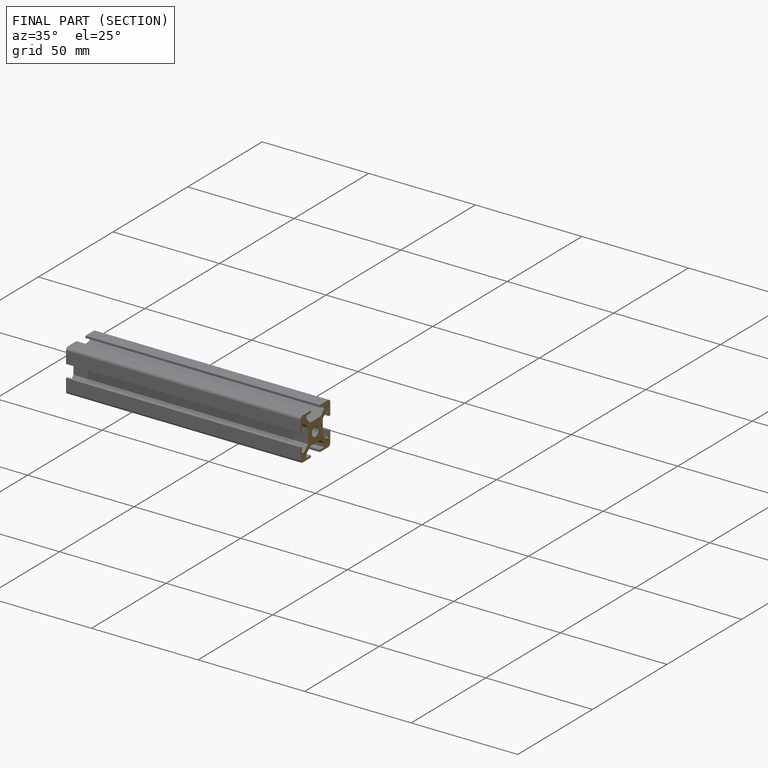
[diagram: finished part — half-section view (interior)]
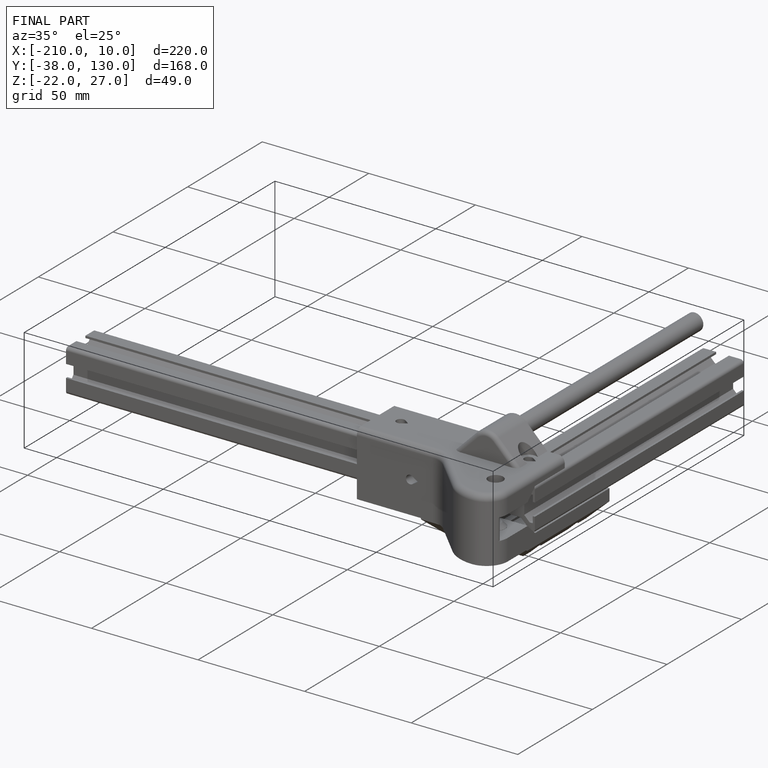
[diagram: finished part — iso view with bounding-box wireframe]
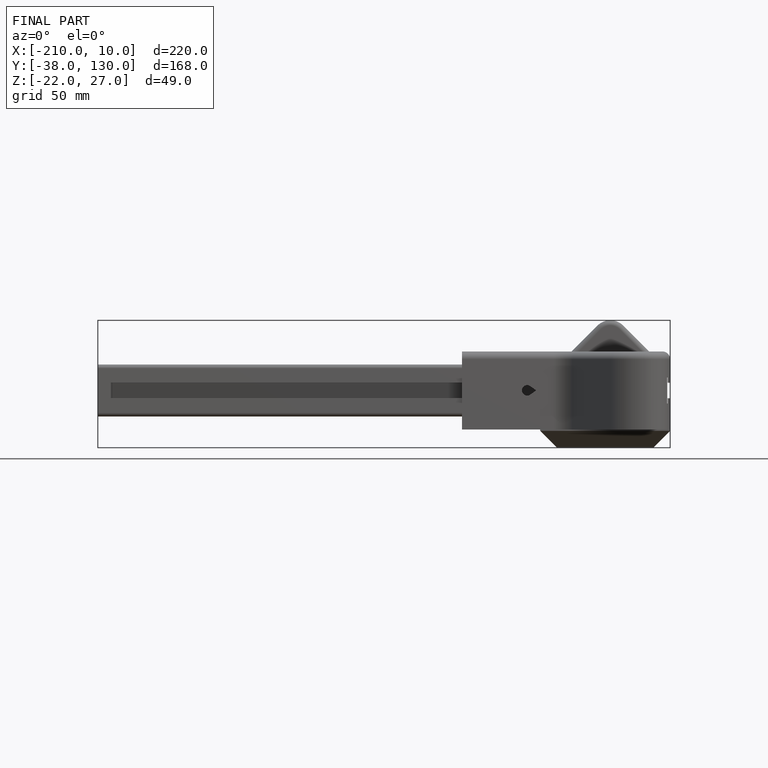
[diagram: finished part — front view with bounding-box wireframe]
